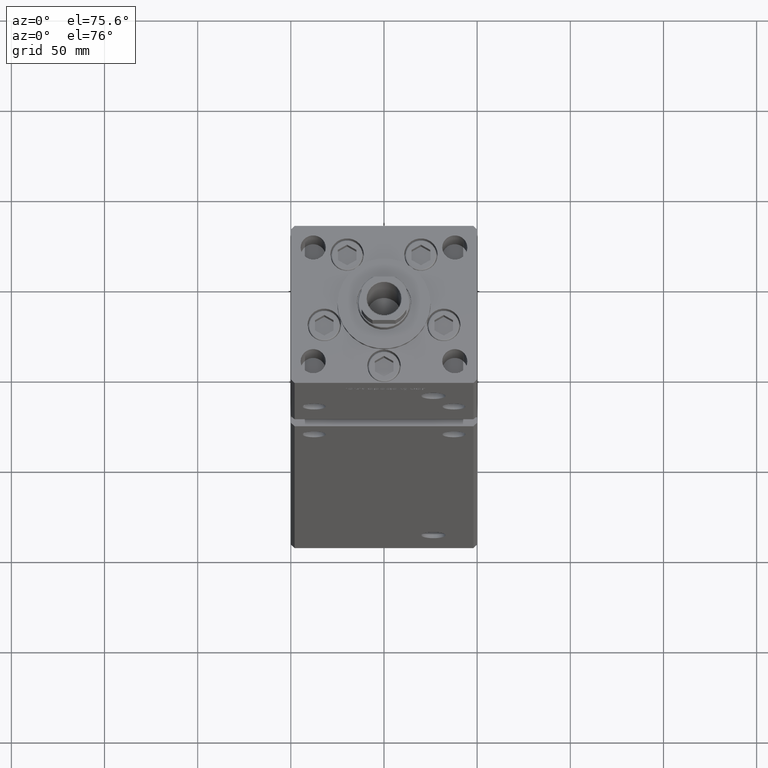
[diagram: clean part render]
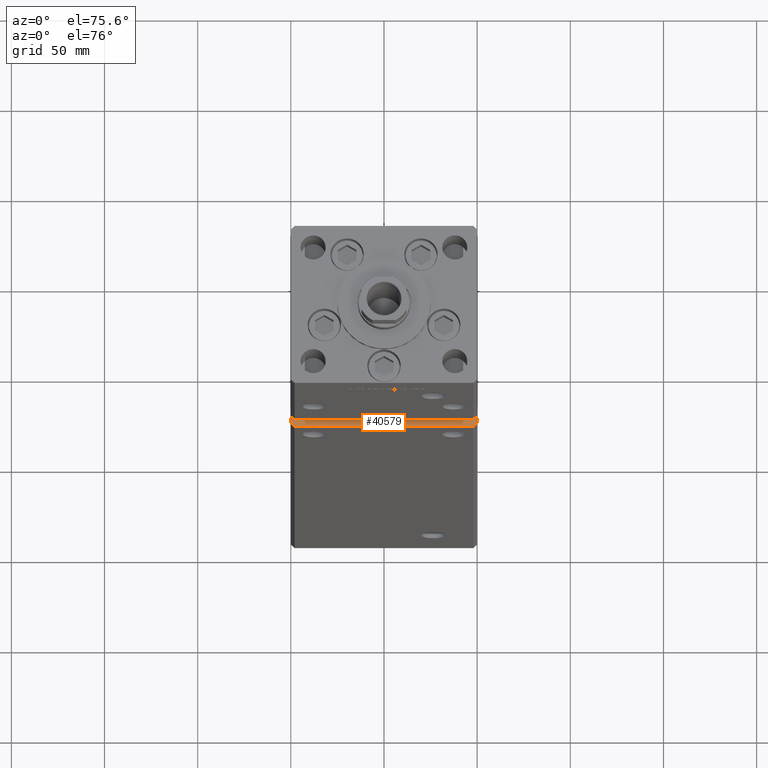
[diagram: same view with one face highlighted and labeled with its STEP entity id]
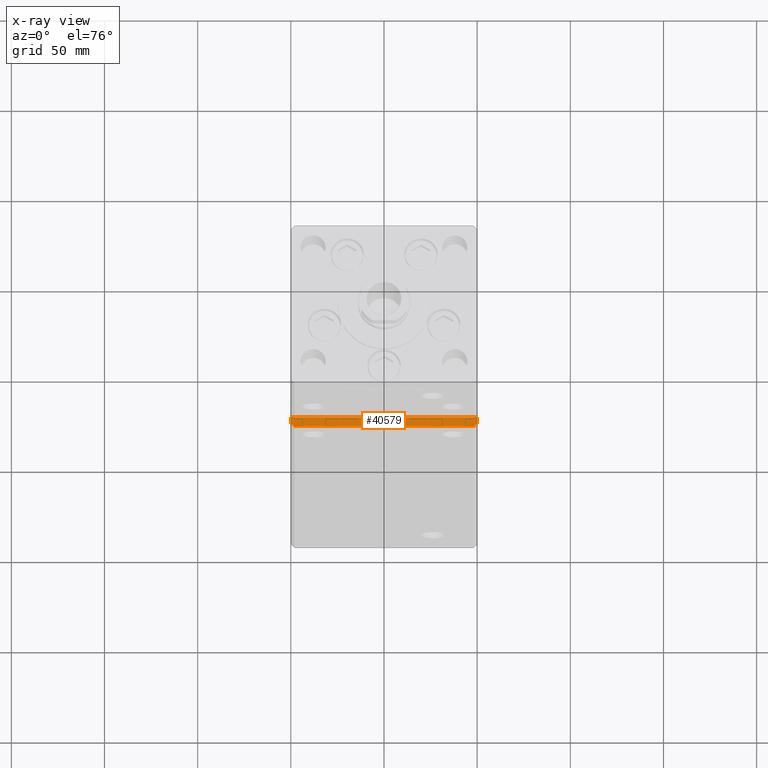
[diagram: x-ray of the same camera — body ghosted, the highlighted face saturated]
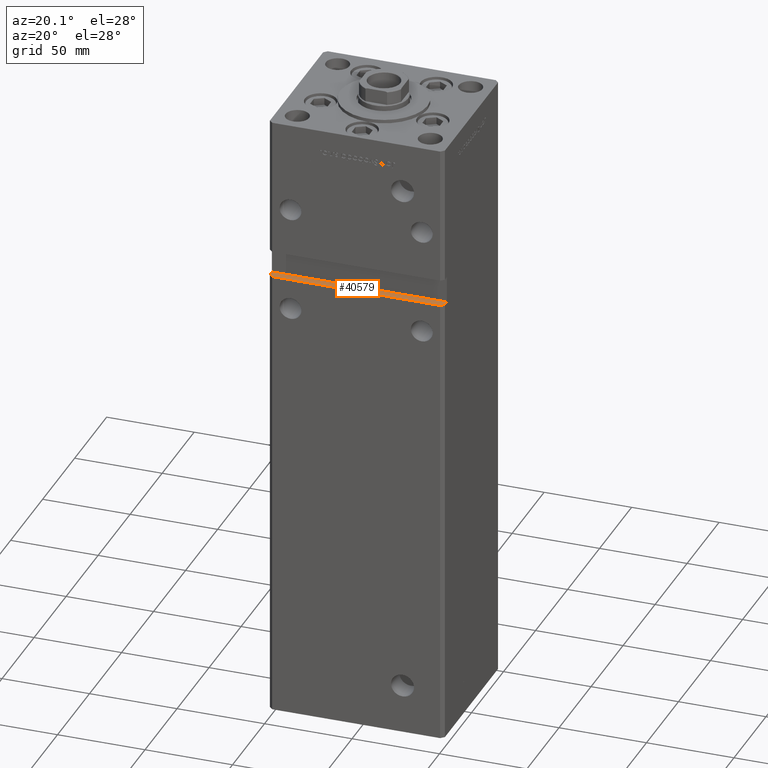
[diagram: same view with one face highlighted and labeled with its STEP entity id]
A machine part, auxiliary view. The second image highlights one B-rep face of the part: STEP entity #40579.
The next image is the same camera in x-ray: the body ghosted, the highlighted face saturated — about 0% of this face is hidden behind the body in this view.
A second angle (auxiliary view) of the same face is appended — the face is thin or edge-on in the first view.
In plain terms, the highlighted planar face has unit normal (0, 0, -1).
Its self-contained STEP definition (entity closure, byte-faithful):
#558 = VECTOR ( 'NONE', #24023, 1000.000000000000114 ) ;
#1049 = EDGE_CURVE ( 'NONE', #25491, #27846, #30906, .T. ) ;
#7199 = EDGE_CURVE ( 'NONE', #13428, #38198, #9682, .T. ) ;
#7413 = CARTESIAN_POINT ( 'NONE',  ( -49.99999999999998579, -38.50000000000000000, 244.0000000000000000 ) ) ;
#7609 = CARTESIAN_POINT ( 'NONE',  ( 49.99999999999998579, -41.49999999999999289, 244.0000000000000000 ) ) ;
#9682 = LINE ( 'NONE', #42273, #10167 ) ;
#10055 = VECTOR ( 'NONE', #48333, 1000.000000000000000 ) ;
#10167 = VECTOR ( 'NONE', #30409, 1000.000000000000114 ) ;
#10515 = DIRECTION ( 'NONE',  ( -0.000000000000000000, -1.000000000000000000, -0.000000000000000000 ) ) ;
#11634 = LINE ( 'NONE', #7609, #558 ) ;
#12165 = CARTESIAN_POINT ( 'NONE',  ( -49.99999999999998579, -38.50000000000000000, 244.0000000000000000 ) ) ;
#12196 = EDGE_CURVE ( 'NONE', #25491, #38198, #15501, .T. ) ;
#13029 = ORIENTED_EDGE ( 'NONE', *, *, #7199, .F. ) ;
#13428 = VERTEX_POINT ( 'NONE', #14575 ) ;
#13932 = CARTESIAN_POINT ( 'NONE',  ( -49.99999999999998579, -38.50000000000000000, 244.0000000000000000 ) ) ;
#14575 = CARTESIAN_POINT ( 'NONE',  ( -47.99999999999998579, -43.50000000000000000, 244.0000000000000000 ) ) ;
#15142 = DIRECTION ( 'NONE',  ( -1.000000000000000000, 0.000000000000000000, -0.000000000000000000 ) ) ;
#15174 = CARTESIAN_POINT ( 'NONE',  ( -49.99999999999998579, -38.50000000000000000, 244.0000000000000000 ) ) ;
#15501 = LINE ( 'NONE', #7413, #51431 ) ;
#15935 = FACE_OUTER_BOUND ( 'NONE', #23459, .T. ) ;
#16057 = ORIENTED_EDGE ( 'NONE', *, *, #51276, .T. ) ;
#17308 = ORIENTED_EDGE ( 'NONE', *, *, #12196, .T. ) ;
#21547 = CARTESIAN_POINT ( 'NONE',  ( 47.99999999999998579, -43.50000000000000000, 244.0000000000000000 ) ) ;
#23459 = EDGE_LOOP ( 'NONE', ( #16057, #43576, #26434, #42236, #17308, #13029 ) ) ;
#23740 = PLANE ( 'NONE',  #37353 ) ;
#23786 = CARTESIAN_POINT ( 'NONE',  ( -49.99999999999998579, -41.49999999999999289, 244.0000000000000000 ) ) ;
#24023 = DIRECTION ( 'NONE',  ( 0.7071067811865474617, 0.7071067811865474617, 0.000000000000000000 ) ) ;
#24273 = DIRECTION ( 'NONE',  ( 0.000000000000000000, 0.000000000000000000, -1.000000000000000000 ) ) ;
#25348 = CARTESIAN_POINT ( 'NONE',  ( 49.99999999999998579, -41.49999999999999289, 244.0000000000000000 ) ) ;
#25491 = VERTEX_POINT ( 'NONE', #15174 ) ;
#26434 = ORIENTED_EDGE ( 'NONE', *, *, #45751, .F. ) ;
#27846 = VERTEX_POINT ( 'NONE', #40979 ) ;
#28395 = VECTOR ( 'NONE', #47318, 1000.000000000000000 ) ;
#30409 = DIRECTION ( 'NONE',  ( -0.7071067811865474617, 0.7071067811865474617, 0.000000000000000000 ) ) ;
#30906 = LINE ( 'NONE', #13932, #28395 ) ;
#31931 = CARTESIAN_POINT ( 'NONE',  ( -49.99999999999998579, -43.50000000000000000, 244.0000000000000000 ) ) ;
#34913 = VECTOR ( 'NONE', #10515, 1000.000000000000000 ) ;
#34999 = LINE ( 'NONE', #51421, #34913 ) ;
#36234 = LINE ( 'NONE', #31931, #10055 ) ;
#37353 = AXIS2_PLACEMENT_3D ( 'NONE', #12165, #24273, #15142 ) ;
#38198 = VERTEX_POINT ( 'NONE', #23786 ) ;
#40579 = ADVANCED_FACE ( 'NONE', ( #15935 ), #23740, .F. ) ;
#40979 = CARTESIAN_POINT ( 'NONE',  ( 49.99999999999998579, -38.49999999999999289, 244.0000000000000000 ) ) ;
#42236 = ORIENTED_EDGE ( 'NONE', *, *, #1049, .F. ) ;
#42273 = CARTESIAN_POINT ( 'NONE',  ( -49.99999999999998579, -41.49999999999999289, 244.0000000000000000 ) ) ;
#42311 = VERTEX_POINT ( 'NONE', #25348 ) ;
#43576 = ORIENTED_EDGE ( 'NONE', *, *, #45599, .T. ) ;
#44292 = DIRECTION ( 'NONE',  ( -0.000000000000000000, -1.000000000000000000, -0.000000000000000000 ) ) ;
#45599 = EDGE_CURVE ( 'NONE', #46378, #42311, #11634, .T. ) ;
#45751 = EDGE_CURVE ( 'NONE', #27846, #42311, #34999, .T. ) ;
#46378 = VERTEX_POINT ( 'NONE', #21547 ) ;
#47318 = DIRECTION ( 'NONE',  ( 1.000000000000000000, 0.000000000000000000, 0.000000000000000000 ) ) ;
#48333 = DIRECTION ( 'NONE',  ( 1.000000000000000000, 0.000000000000000000, 0.000000000000000000 ) ) ;
#51276 = EDGE_CURVE ( 'NONE', #13428, #46378, #36234, .T. ) ;
#51421 = CARTESIAN_POINT ( 'NONE',  ( 49.99999999999998579, -38.50000000000000000, 244.0000000000000000 ) ) ;
#51431 = VECTOR ( 'NONE', #44292, 1000.000000000000000 ) ;